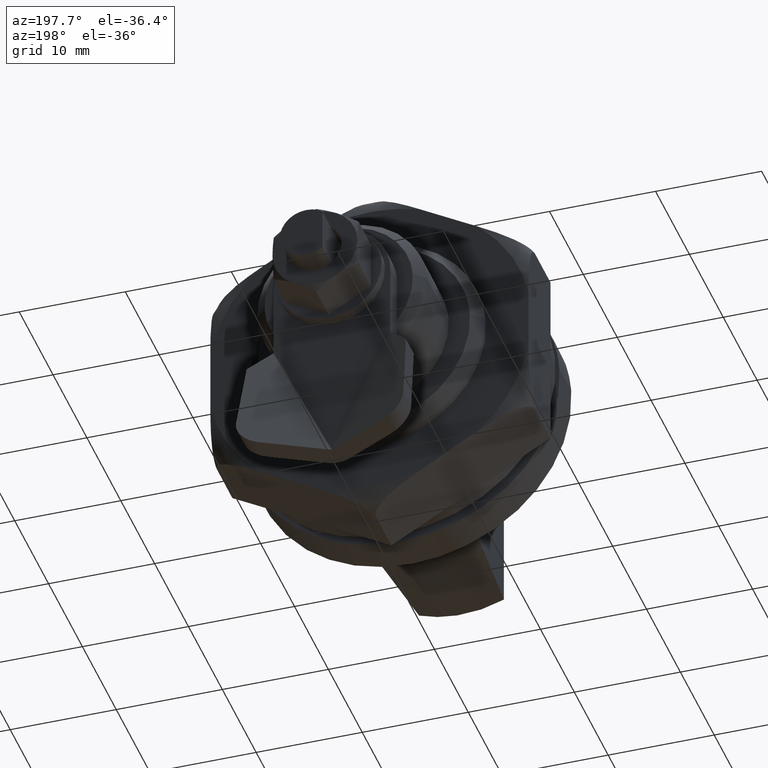
[diagram: clean part render]
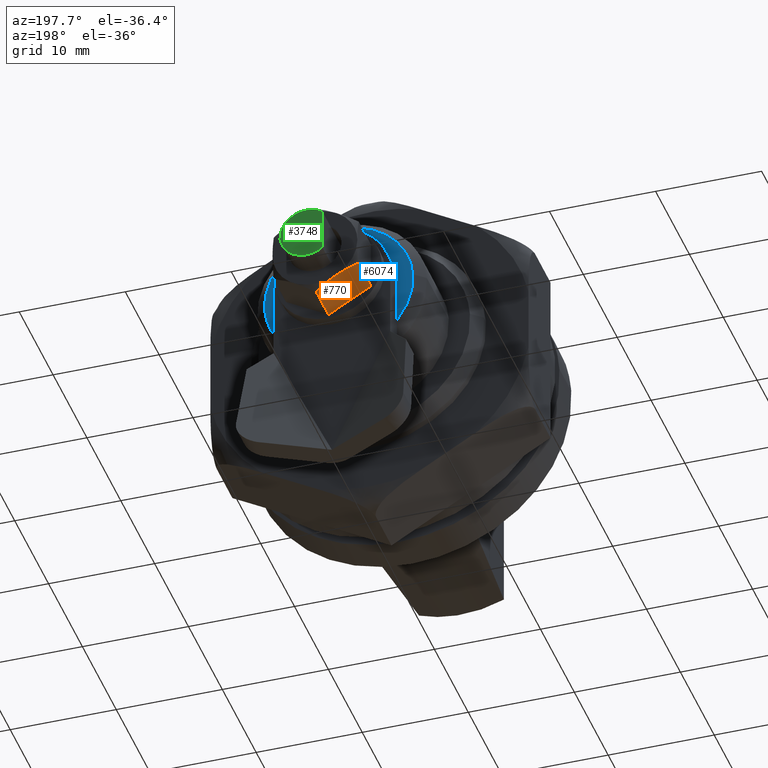
[diagram: same view with three faces highlighted in distinct colors, each labeled with its STEP entity id]
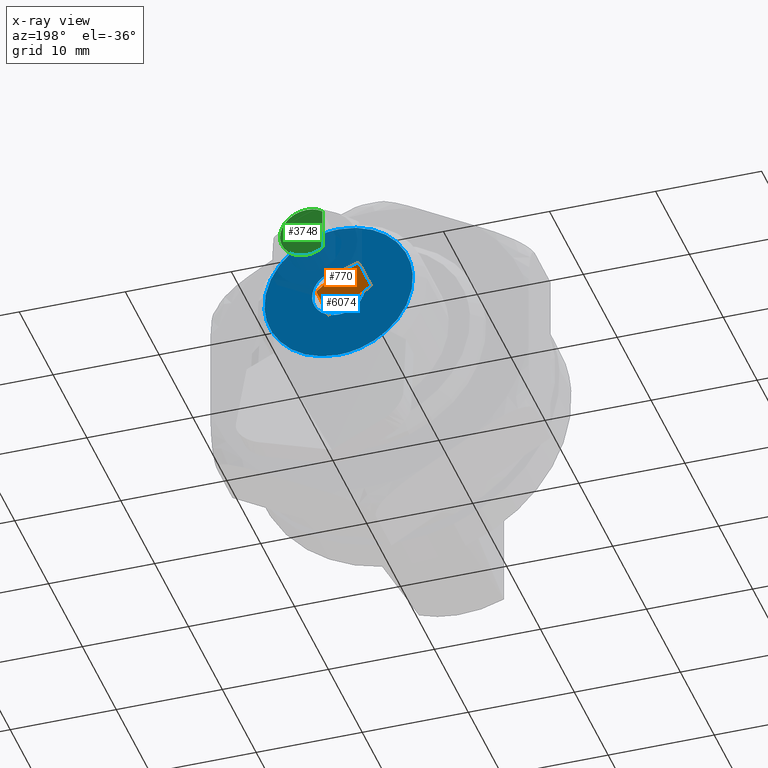
[diagram: x-ray of the same camera — body ghosted, the three highlighted faces saturated]
A machine part, auxiliary view with three faces highlighted in distinct colors.
The next image is the same camera in x-ray (body ghosted, the three faces saturated) — at least one of them is partly hidden behind the body in this view.
Their STEP definitions:

[orange] entity #770 — the highlighted face is a freeform B-spline surface patch.
#198=CARTESIAN_POINT('',(-0.001732914924227,21.300000000000001,-4.617999674859990));
#199=VERTEX_POINT('',#198);
#295=CARTESIAN_POINT('',(-3.998091007287475,21.300000000000001,-2.311101966043060));
#296=VERTEX_POINT('',#295);
#310=CARTESIAN_POINT('',(-3.998091007287475,21.300000000000001,-2.311101966043060));
#311=CARTESIAN_POINT('',(-0.001732914924227,21.300000000000001,-4.617999674859990));
#312=QUASI_UNIFORM_CURVE('',1,(#310,#311),.UNSPECIFIED.,.F.,.U.);
#313=EDGE_CURVE('',#296,#199,#312,.T.);
#669=CARTESIAN_POINT('',(-3.998091007287475,24.943000000000001,-2.311101966043060));
#670=VERTEX_POINT('',#669);
#684=CARTESIAN_POINT('',(-3.998091007287475,24.943000000000001,-2.311101966043060));
#685=CARTESIAN_POINT('',(-3.998091007287475,21.300000000000001,-2.311101966043060));
#686=QUASI_UNIFORM_CURVE('',1,(#684,#685),.UNSPECIFIED.,.F.,.U.);
#687=EDGE_CURVE('',#670,#296,#686,.T.);
#713=CARTESIAN_POINT('',(-0.001732914924229,24.943000000000001,-4.617999674859990));
#714=VERTEX_POINT('',#713);
#715=CARTESIAN_POINT('',(-0.001732914924227,21.300000000000001,-4.617999674859990));
#716=CARTESIAN_POINT('',(-0.001732914924229,24.943000000000001,-4.617999674859990));
#717=QUASI_UNIFORM_CURVE('',1,(#715,#716),.UNSPECIFIED.,.F.,.U.);
#718=EDGE_CURVE('',#199,#714,#717,.T.);
#743=CARTESIAN_POINT('',(0.197885164043600,21.100209963566201,-4.733229210944179));
#744=CARTESIAN_POINT('',(-4.197709193445981,21.100209963566201,-2.195872368083055));
#745=CARTESIAN_POINT('',(0.197885164043600,25.499590828125061,-4.733229210944179));
#746=CARTESIAN_POINT('',(-4.197709193445981,25.499590828125061,-2.195872368083055));
#747=B_SPLINE_SURFACE_WITH_KNOTS('',1,1,((#743,#745),(#744,#746)),.UNSPECIFIED.,.F.,.F.,.U.,(2,2),(2,2),(0.0,5.075374814100769),(0.0,4.399380864558857),.UNSPECIFIED.);
#748=ORIENTED_EDGE('',*,*,#313,.F.);
#749=ORIENTED_EDGE('',*,*,#687,.F.);
#750=CARTESIAN_POINT('',(-0.001732914924228,24.943000000000001,-4.617999674859989));
#751=CARTESIAN_POINT('',(-0.327998915481621,25.051725911735382,-4.429662626038216));
#752=CARTESIAN_POINT('',(-0.656641857778012,25.141323929904189,-4.239953487597604));
#753=CARTESIAN_POINT('',(-1.320772465458117,25.265438626821989,-3.856584094314221));
#754=CARTESIAN_POINT('',(-1.656310859540695,25.299547077999939,-3.662894556330034));
#755=CARTESIAN_POINT('',(-2.080992819172906,25.299862310787930,-3.417746895132315));
#756=CARTESIAN_POINT('',(-2.166361243381264,25.297826204102360,-3.368467972258035));
#757=CARTESIAN_POINT('',(-2.336334582298202,25.289619839802260,-3.270350862368221));
#758=CARTESIAN_POINT('',(-2.421025915255928,25.283459276207950,-3.221462790418369));
#759=CARTESIAN_POINT('',(-2.674252210691553,25.259072289878240,-3.075287911378141));
#760=CARTESIAN_POINT('',(-2.841937490032127,25.234926780555721,-2.978491583878783));
#761=CARTESIAN_POINT('',(-3.342006661506315,25.141684452019671,-2.689826654645277));
#762=CARTESIAN_POINT('',(-3.671415451592261,25.051862393182081,-2.499675430568146));
#763=CARTESIAN_POINT('',(-3.998091007287477,24.943000000000001,-2.311101966043062));
#764=B_SPLINE_CURVE_WITH_KNOTS('',3,(#750,#751,#752,#753,#754,#755,#756,#757,#758,#759,#760,#761,#762,#763),.UNSPECIFIED.,.F.,.U.,(4,2,2,2,2,2,4),(0.0,0.250000000000000,0.500000000000000,0.562500000000000,0.625000000000000,0.750000000000000,1.0),.UNSPECIFIED.);
#765=EDGE_CURVE('',#714,#670,#764,.T.);
#766=ORIENTED_EDGE('',*,*,#765,.F.);
#767=ORIENTED_EDGE('',*,*,#718,.F.);
#768=EDGE_LOOP('',(#748,#749,#766,#767));
#769=FACE_OUTER_BOUND('',#768,.T.);
#770=ADVANCED_FACE('',(#769),#747,.T.);

[blue] entity #6074 — the highlighted face is a freeform B-spline surface patch.
#5895=CARTESIAN_POINT('',(-2.495336996053276,18.300000000000001,0.152621348859881));
#5896=VERTEX_POINT('',#5895);
#5902=CARTESIAN_POINT('',(0.0,18.300000000000001,2.499999999999998));
#5903=VERTEX_POINT('',#5902);
#5904=CARTESIAN_POINT('',(0.0,18.300000000000001,2.499999999999998));
#5905=CARTESIAN_POINT('',(-2.351765167242766,18.300000000000008,2.499999999999997));
#5906=CARTESIAN_POINT('',(-2.495336996053277,18.299999999999997,0.152621348859880));
#5914=(BOUNDED_CURVE()B_SPLINE_CURVE(2,(#5904,#5905,#5906),.UNSPECIFIED.,.F.,.U.)B_SPLINE_CURVE_WITH_KNOTS((3,3),(0.500000000000000,0.739332962240396),.UNSPECIFIED.)CURVE()GEOMETRIC_REPRESENTATION_ITEM()RATIONAL_B_SPLINE_CURVE((1.0,0.719603993285008,0.976072041669832))REPRESENTATION_ITEM(''));
#5915=EDGE_CURVE('',#5903,#5896,#5914,.T.);
#5917=CARTESIAN_POINT('',(2.495336996053276,18.300000000000001,-0.152621348859882));
#5918=VERTEX_POINT('',#5917);
#5919=CARTESIAN_POINT('',(2.495336996053277,18.300000000000008,-0.152621348859883));
#5920=CARTESIAN_POINT('',(2.500000000000001,18.300000000000004,-0.076381908257875));
#5921=CARTESIAN_POINT('',(2.500000000000000,18.300000000000001,-1.665832E-015));
#5922=CARTESIAN_POINT('',(2.500000000000000,18.300000000000001,2.499999999999999));
#5923=CARTESIAN_POINT('',(0.0,18.300000000000001,2.499999999999998));
#5931=(BOUNDED_CURVE()B_SPLINE_CURVE(2,(#5919,#5920,#5921,#5922,#5923),.UNSPECIFIED.,.F.,.U.)B_SPLINE_CURVE_WITH_KNOTS((3,2,3),(0.239332962240396,0.250000000000000,0.500000000000000),.UNSPECIFIED.)CURVE()GEOMETRIC_REPRESENTATION_ITEM()RATIONAL_B_SPLINE_CURVE((0.976072041669832,0.987502787901540,1.0,0.707106781186548,1.0))REPRESENTATION_ITEM(''));
#5932=EDGE_CURVE('',#5918,#5903,#5931,.T.);
#5962=CARTESIAN_POINT('',(0.0,18.300000000000001,-2.500000000000002));
#5963=VERTEX_POINT('',#5962);
#5964=CARTESIAN_POINT('',(0.0,18.300000000000001,-2.500000000000002));
#5965=CARTESIAN_POINT('',(2.351765167242766,18.300000000000008,-2.500000000000002));
#5966=CARTESIAN_POINT('',(2.495336996053277,18.300000000000008,-0.152621348859883));
#5974=(BOUNDED_CURVE()B_SPLINE_CURVE(2,(#5964,#5965,#5966),.UNSPECIFIED.,.F.,.U.)B_SPLINE_CURVE_WITH_KNOTS((3,3),(0.0,0.239332962240396),.UNSPECIFIED.)CURVE()GEOMETRIC_REPRESENTATION_ITEM()RATIONAL_B_SPLINE_CURVE((1.0,0.719603993285008,0.976072041669832))REPRESENTATION_ITEM(''));
#5975=EDGE_CURVE('',#5963,#5918,#5974,.T.);
#5977=CARTESIAN_POINT('',(-2.495336996053277,18.299999999999997,0.152621348859880));
#5978=CARTESIAN_POINT('',(-2.500000000000000,18.299999999999994,0.076381908257872));
#5979=CARTESIAN_POINT('',(-2.500000000000000,18.300000000000001,-1.665832E-015));
#5980=CARTESIAN_POINT('',(-2.500000000000000,18.300000000000001,-2.500000000000001));
#5981=CARTESIAN_POINT('',(0.0,18.300000000000001,-2.500000000000002));
#5989=(BOUNDED_CURVE()B_SPLINE_CURVE(2,(#5977,#5978,#5979,#5980,#5981),.UNSPECIFIED.,.F.,.U.)B_SPLINE_CURVE_WITH_KNOTS((3,2,3),(0.739332962240396,0.750000000000000,1.0),.UNSPECIFIED.)CURVE()GEOMETRIC_REPRESENTATION_ITEM()RATIONAL_B_SPLINE_CURVE((0.976072041669832,0.987502787901540,1.0,0.707106781186548,1.0))REPRESENTATION_ITEM(''));
#5990=EDGE_CURVE('',#5896,#5963,#5989,.T.);
#5997=CARTESIAN_POINT('',(-7.699127711164457,18.300000000000001,-7.699299972865418));
#5998=CARTESIAN_POINT('',(-7.699127711164457,18.300000000000001,7.699300348374676));
#5999=CARTESIAN_POINT('',(7.699127460824946,18.300000000000001,-7.699299972865418));
#6000=CARTESIAN_POINT('',(7.699127460824946,18.300000000000001,7.699300348374676));
#6001=B_SPLINE_SURFACE_WITH_KNOTS('',1,1,((#5997,#5999),(#5998,#6000)),.UNSPECIFIED.,.F.,.F.,.U.,(2,2),(2,2),(0.0,15.398600321240091),(0.0,15.398255171989399),.UNSPECIFIED.);
#6002=CARTESIAN_POINT('',(-6.986943588961873,18.299999999983829,0.427339776866929));
#6003=VERTEX_POINT('',#6002);
#6004=CARTESIAN_POINT('',(0.0,18.300000000000001,-7.000000000000122));
#6005=VERTEX_POINT('',#6004);
#6006=CARTESIAN_POINT('',(-6.986943588961873,18.299999999983825,0.427339776866929));
#6007=CARTESIAN_POINT('',(-7.000000000016031,18.299999999984056,0.213869343152236));
#6008=CARTESIAN_POINT('',(-7.000000000015784,18.299999999984308,9.550917E-013));
#6009=CARTESIAN_POINT('',(-7.000000000007712,18.299999999992394,-6.999999999999658));
#6010=CARTESIAN_POINT('',(0.0,18.300000000000001,-7.000000000000122));
#6018=(BOUNDED_CURVE()B_SPLINE_CURVE(2,(#6006,#6007,#6008,#6009,#6010),.UNSPECIFIED.,.F.,.U.)B_SPLINE_CURVE_WITH_KNOTS((3,2,3),(0.739332962238957,0.750000000000000,1.0),.UNSPECIFIED.)CURVE()GEOMETRIC_REPRESENTATION_ITEM()RATIONAL_B_SPLINE_CURVE((0.976072041666748,0.987502787899854,1.0,0.707106781186547,1.0))REPRESENTATION_ITEM(''));
#6019=EDGE_CURVE('',#6003,#6005,#6018,.T.);
#6020=ORIENTED_EDGE('',*,*,#6019,.F.);
#6021=CARTESIAN_POINT('',(0.0,18.300000000000001,7.000000000000118));
#6022=VERTEX_POINT('',#6021);
#6023=CARTESIAN_POINT('',(0.0,18.300000000000001,7.000000000000118));
#6024=CARTESIAN_POINT('',(-6.584942468232908,18.299999999991922,7.000000000000609));
#6025=CARTESIAN_POINT('',(-6.986943588961873,18.299999999983825,0.427339776866929));
#6033=(BOUNDED_CURVE()B_SPLINE_CURVE(2,(#6023,#6024,#6025),.UNSPECIFIED.,.F.,.U.)B_SPLINE_CURVE_WITH_KNOTS((3,3),(0.500000000000000,0.739332962238957),.UNSPECIFIED.)CURVE()GEOMETRIC_REPRESENTATION_ITEM()RATIONAL_B_SPLINE_CURVE((1.0,0.719603993286694,0.976072041666748))REPRESENTATION_ITEM(''));
#6034=EDGE_CURVE('',#6022,#6003,#6033,.T.);
#6035=ORIENTED_EDGE('',*,*,#6034,.F.);
#6036=CARTESIAN_POINT('',(6.986943588961873,18.299999999983829,-0.427339776866931));
#6037=VERTEX_POINT('',#6036);
#6038=CARTESIAN_POINT('',(6.986943588961873,18.299999999983825,-0.427339776866931));
#6039=CARTESIAN_POINT('',(7.000000000016031,18.299999999984053,-0.213869343152240));
#6040=CARTESIAN_POINT('',(7.000000000015784,18.299999999984308,-9.598777E-013));
#6041=CARTESIAN_POINT('',(7.000000000007712,18.299999999992394,6.999999999999653));
#6042=CARTESIAN_POINT('',(0.0,18.300000000000001,7.000000000000118));
#6050=(BOUNDED_CURVE()B_SPLINE_CURVE(2,(#6038,#6039,#6040,#6041,#6042),.UNSPECIFIED.,.F.,.U.)B_SPLINE_CURVE_WITH_KNOTS((3,2,3),(0.239332962238957,0.250000000000000,0.500000000000000),.UNSPECIFIED.)CURVE()GEOMETRIC_REPRESENTATION_ITEM()RATIONAL_B_SPLINE_CURVE((0.976072041666748,0.987502787899854,1.0,0.707106781186547,1.0))REPRESENTATION_ITEM(''));
#6051=EDGE_CURVE('',#6037,#6022,#6050,.T.);
#6052=ORIENTED_EDGE('',*,*,#6051,.F.);
#6053=CARTESIAN_POINT('',(0.0,18.300000000000001,-7.000000000000122));
#6054=CARTESIAN_POINT('',(6.584942468232911,18.299999999991908,-7.000000000000616));
#6055=CARTESIAN_POINT('',(6.986943588961873,18.299999999983825,-0.427339776866931));
#6063=(BOUNDED_CURVE()B_SPLINE_CURVE(2,(#6053,#6054,#6055),.UNSPECIFIED.,.F.,.U.)B_SPLINE_CURVE_WITH_KNOTS((3,3),(0.0,0.239332962238957),.UNSPECIFIED.)CURVE()GEOMETRIC_REPRESENTATION_ITEM()RATIONAL_B_SPLINE_CURVE((1.0,0.719603993286694,0.976072041666748))REPRESENTATION_ITEM(''));
#6064=EDGE_CURVE('',#6005,#6037,#6063,.T.);
#6065=ORIENTED_EDGE('',*,*,#6064,.F.);
#6066=EDGE_LOOP('',(#6020,#6035,#6052,#6065));
#6067=FACE_OUTER_BOUND('',#6066,.T.);
#6068=ORIENTED_EDGE('',*,*,#5915,.T.);
#6069=ORIENTED_EDGE('',*,*,#5990,.T.);
#6070=ORIENTED_EDGE('',*,*,#5975,.T.);
#6071=ORIENTED_EDGE('',*,*,#5932,.T.);
#6072=EDGE_LOOP('',(#6068,#6069,#6070,#6071));
#6073=FACE_BOUND('',#6072,.T.);
#6074=ADVANCED_FACE('',(#6067,#6073),#6001,.T.);

[green] entity #3748 — the highlighted face is a freeform B-spline surface patch.
#3704=CARTESIAN_POINT('',(-1.699799992247209,27.800000000000001,-2.749742488692714));
#3705=CARTESIAN_POINT('',(2.699800099535266,27.800000000000001,-2.749742488692714));
#3706=CARTESIAN_POINT('',(-1.699799992247209,27.800000000000001,2.749742455291336));
#3707=CARTESIAN_POINT('',(2.699800099535266,27.800000000000001,2.749742455291336));
#3708=B_SPLINE_SURFACE_WITH_KNOTS('',1,1,((#3704,#3706),(#3705,#3707)),.UNSPECIFIED.,.F.,.F.,.U.,(2,2),(2,2),(0.0,4.399600091782475),(0.0,5.499484943984051),.UNSPECIFIED.);
#3709=CARTESIAN_POINT('',(-1.500000000000000,27.800000000000001,-1.999999999999800));
#3710=VERTEX_POINT('',#3709);
#3711=CARTESIAN_POINT('',(-1.500000000000000,27.800000000000001,2.0));
#3712=VERTEX_POINT('',#3711);
#3713=CARTESIAN_POINT('',(-1.500000000000000,27.800000000000001,-1.999999999999800));
#3714=CARTESIAN_POINT('',(-1.304004047154150,27.800000000000018,-2.147150385984885));
#3715=CARTESIAN_POINT('',(-0.983605639992730,27.799999999999979,-2.320480829461689));
#3716=CARTESIAN_POINT('',(-0.455896071609214,27.800000000000011,-2.472363889048447));
#3717=CARTESIAN_POINT('',(0.049396126008995,27.800000000000011,-2.522371719258725));
#3718=CARTESIAN_POINT('',(0.567442212365059,27.799999999999859,-2.452010889435435));
#3719=CARTESIAN_POINT('',(1.018258219161984,27.800000000000221,-2.295584983200806));
#3720=CARTESIAN_POINT('',(1.336025194275150,27.799999999999699,-2.122710960279512));
#3721=CARTESIAN_POINT('',(1.649422438907910,27.800000000000239,-1.891006350522205));
#3722=CARTESIAN_POINT('',(1.926366335327090,27.799999999999660,-1.615021049001854));
#3723=CARTESIAN_POINT('',(2.214640010782234,27.800000000000519,-1.198608141961771));
#3724=CARTESIAN_POINT('',(2.394687712073535,27.799999999999638,-0.770218737370262));
#3725=CARTESIAN_POINT('',(2.501922260986315,27.800000000000320,-0.261140866808973));
#3726=CARTESIAN_POINT('',(2.510987031670457,27.799999999999329,0.261571895303431));
#3727=CARTESIAN_POINT('',(2.391142398082490,27.800000000000342,0.785365591087237));
#3728=CARTESIAN_POINT('',(2.206747331693292,27.799999999999791,1.193940926599300));
#3729=CARTESIAN_POINT('',(2.003726740992811,27.800000000000200,1.510058414179662));
#3730=CARTESIAN_POINT('',(1.689900991601335,27.799999999999979,1.869514138033453));
#3731=CARTESIAN_POINT('',(1.256895726408957,27.799999999999880,2.189648296972871));
#3732=CARTESIAN_POINT('',(0.748376644547023,27.800000000000200,2.401249781160721));
#3733=CARTESIAN_POINT('',(0.252436073275162,27.799999999999841,2.503946318305597));
#3734=CARTESIAN_POINT('',(-0.284331515271998,27.800000000000050,2.506783532338852));
#3735=CARTESIAN_POINT('',(-0.906725936403468,27.800000000000040,2.362137937925254));
#3736=CARTESIAN_POINT('',(-1.304001319718554,27.799999999999631,2.147136032536526));
#3737=CARTESIAN_POINT('',(-1.500000000000000,27.800000000000001,2.0));
#3738=B_SPLINE_CURVE_WITH_KNOTS('',3,(#3713,#3714,#3715,#3716,#3717,#3718,#3719,#3720,#3721,#3722,#3723,#3724,#3725,#3726,#3727,#3728,#3729,#3730,#3731,#3732,#3733,#3734,#3735,#3736,#3737),.UNSPECIFIED.,.F.,.U.,(4,1,1,1,1,1,1,1,1,1,1,1,1,1,1,1,1,1,1,1,1,1,4),(-0.000000631717079,0.735215140054908,1.081200734161641,1.643441447762324,2.248928407598363,2.638175086993909,3.070663967710018,3.330139349216059,3.805860052317743,4.238335587964769,4.843827808766757,5.189824815024936,5.795310072136411,6.400798608023670,6.790043438720602,7.136025911323294,7.525219726377300,8.217207439728389,8.736202060287095,9.168689325605886,9.730930488941327,10.336416372648809,11.071624811771160),.UNSPECIFIED.);
#3739=EDGE_CURVE('',#3710,#3712,#3738,.T.);
#3740=ORIENTED_EDGE('',*,*,#3739,.F.);
#3741=CARTESIAN_POINT('',(-1.500000000000000,27.800000000000001,2.0));
#3742=CARTESIAN_POINT('',(-1.500000000000000,27.800000000000001,-1.999999999999800));
#3743=QUASI_UNIFORM_CURVE('',1,(#3741,#3742),.UNSPECIFIED.,.F.,.U.);
#3744=EDGE_CURVE('',#3712,#3710,#3743,.T.);
#3745=ORIENTED_EDGE('',*,*,#3744,.F.);
#3746=EDGE_LOOP('',(#3740,#3745));
#3747=FACE_OUTER_BOUND('',#3746,.T.);
#3748=ADVANCED_FACE('',(#3747),#3708,.F.);